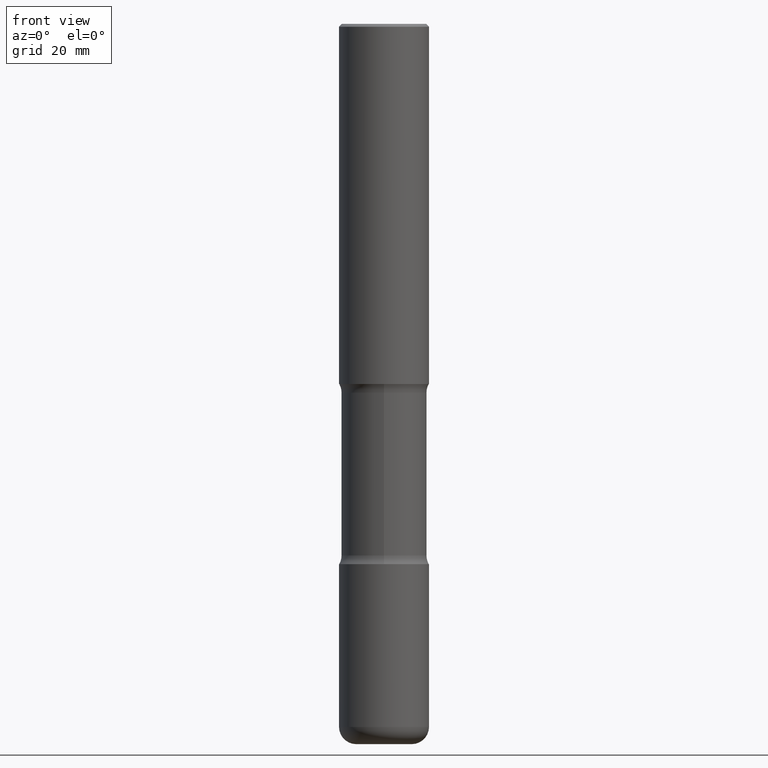
[diagram: clean part render]
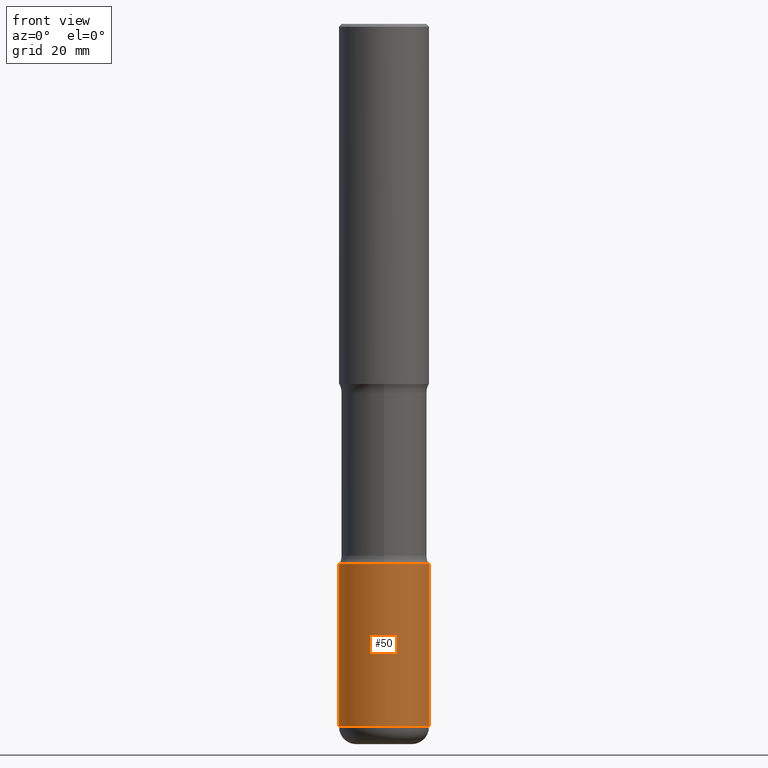
[diagram: same view with one face highlighted and labeled with its STEP entity id]
A machine part, front view. The second image highlights one B-rep face of the part: STEP entity #50.
In plain terms, the highlighted cylindrical surface (partial cylindrical patch) has radius 7.9375 mm, axis along (-0, 0, 1).
Its self-contained STEP definition (entity closure, byte-faithful):
#21 = VECTOR ( 'NONE', #168, 39.37007874015748143 ) ;
#31 = DIRECTION ( 'NONE',  ( -2.445468806185136597E-29, 3.491481338843145583E-15, 1.000000000000000000 ) ) ;
#32 = VECTOR ( 'NONE', #325, 39.37007874015748143 ) ;
#34 = AXIS2_PLACEMENT_3D ( 'NONE', #400, #153, #271 ) ;
#45 = ORIENTED_EDGE ( 'NONE', *, *, #109, .T. ) ;
#50 = ADVANCED_FACE ( 'NONE', ( #57 ), #202, .T. ) ;
#57 = FACE_OUTER_BOUND ( 'NONE', #272, .T. ) ;
#79 = CARTESIAN_POINT ( 'NONE',  ( 0.3125000000000002220, -2.182175836776959925E-15, 1.523805242436231196E-29 ) ) ;
#84 = VERTEX_POINT ( 'NONE', #451 ) ;
#89 = ORIENTED_EDGE ( 'NONE', *, *, #498, .F. ) ;
#109 = EDGE_CURVE ( 'NONE', #84, #208, #355, .T. ) ;
#151 = CARTESIAN_POINT ( 'NONE',  ( 0.000000000000000000, 0.000000000000000000, 0.000000000000000000 ) ) ;
#153 = DIRECTION ( 'NONE',  ( -2.445468806185136597E-29, 3.491481338843145583E-15, 1.000000000000000000 ) ) ;
#158 = AXIS2_PLACEMENT_3D ( 'NONE', #151, #319, #313 ) ;
#160 = DIRECTION ( 'NONE',  ( 1.000000000000000000, -6.982962677686269077E-15, 0.000000000000000000 ) ) ;
#165 = EDGE_CURVE ( 'NONE', #84, #218, #329, .T. ) ;
#166 = CARTESIAN_POINT ( 'NONE',  ( -0.3125000000000002220, 2.220446049250314659E-15, -1.537167215704659073E-29 ) ) ;
#168 = DIRECTION ( 'NONE',  ( -2.445468806185136877E-29, 3.491481338843145188E-15, 1.000000000000000000 ) ) ;
#202 = CYLINDRICAL_SURFACE ( 'NONE', #158, 0.3125000000000002220 ) ;
#208 = VERTEX_POINT ( 'NONE', #210 ) ;
#210 = CARTESIAN_POINT ( 'NONE',  ( 0.3125000000000002220, -1.922060477033151318E-14, -4.880000000000000782 ) ) ;
#214 = CARTESIAN_POINT ( 'NONE',  ( 1.193388777418346668E-28, -1.703842893355455010E-14, -4.880000000000000782 ) ) ;
#218 = VERTEX_POINT ( 'NONE', #417 ) ;
#221 = CARTESIAN_POINT ( 'NONE',  ( 0.3125000000000001665, -1.527523085743875418E-14, -3.749999999999999556 ) ) ;
#242 = EDGE_CURVE ( 'NONE', #208, #399, #465, .T. ) ;
#271 = DIRECTION ( 'NONE',  ( 1.000000000000000000, -6.982962677686265133E-15, 0.000000000000000000 ) ) ;
#272 = EDGE_LOOP ( 'NONE', ( #291, #45, #395, #89 ) ) ;
#291 = ORIENTED_EDGE ( 'NONE', *, *, #165, .F. ) ;
#313 = DIRECTION ( 'NONE',  ( 1.000000000000000000, -6.982962677686266711E-15, 4.876176775795936353E-29 ) ) ;
#319 = DIRECTION ( 'NONE',  ( -2.445468806185136597E-29, 3.491481338843145583E-15, 1.000000000000000000 ) ) ;
#325 = DIRECTION ( 'NONE',  ( -2.445468806185136877E-29, 3.491481338843145188E-15, 1.000000000000000000 ) ) ;
#329 = LINE ( 'NONE', #166, #32 ) ;
#355 = CIRCLE ( 'NONE', #462, 0.3125000000000002776 ) ;
#395 = ORIENTED_EDGE ( 'NONE', *, *, #242, .T. ) ;
#399 = VERTEX_POINT ( 'NONE', #221 ) ;
#400 = CARTESIAN_POINT ( 'NONE',  ( 9.170508023194261117E-29, -1.309305502066179584E-14, -3.749999999999999556 ) ) ;
#412 = CIRCLE ( 'NONE', #34, 0.3125000000000001665 ) ;
#417 = CARTESIAN_POINT ( 'NONE',  ( -0.3125000000000001665, -1.284529592785785752E-14, -3.749999999999999556 ) ) ;
#451 = CARTESIAN_POINT ( 'NONE',  ( -0.3125000000000002220, -1.481798288430423702E-14, -4.880000000000000782 ) ) ;
#462 = AXIS2_PLACEMENT_3D ( 'NONE', #214, #31, #160 ) ;
#465 = LINE ( 'NONE', #79, #21 ) ;
#498 = EDGE_CURVE ( 'NONE', #218, #399, #412, .T. ) ;